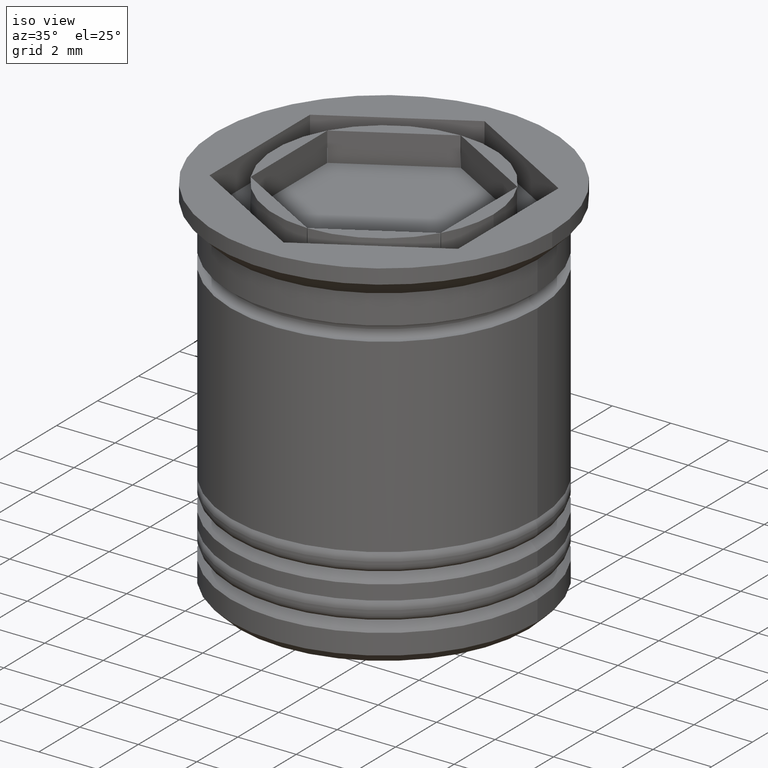
[diagram: clean part render]
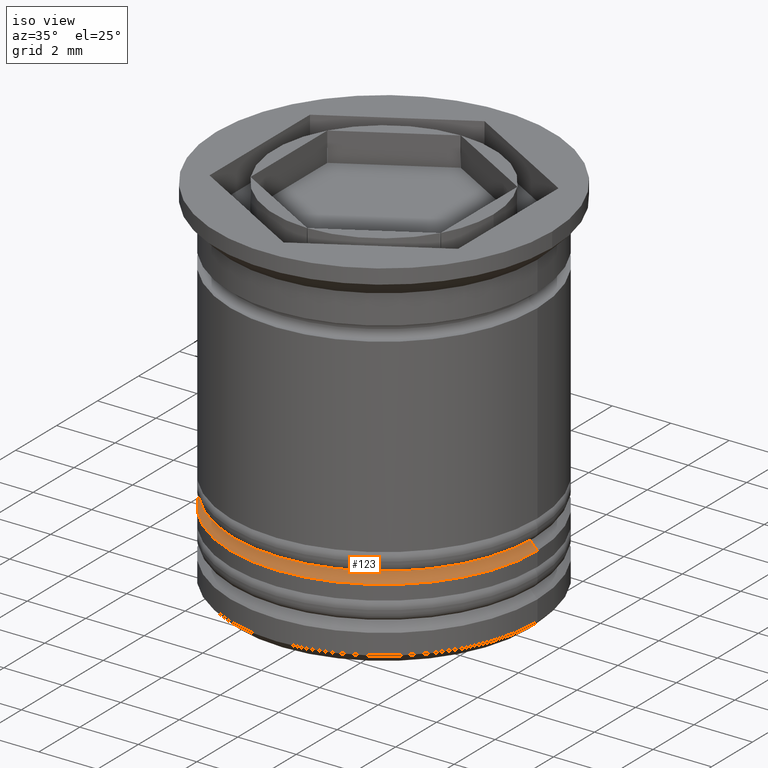
[diagram: same view with one face highlighted and labeled with its STEP entity id]
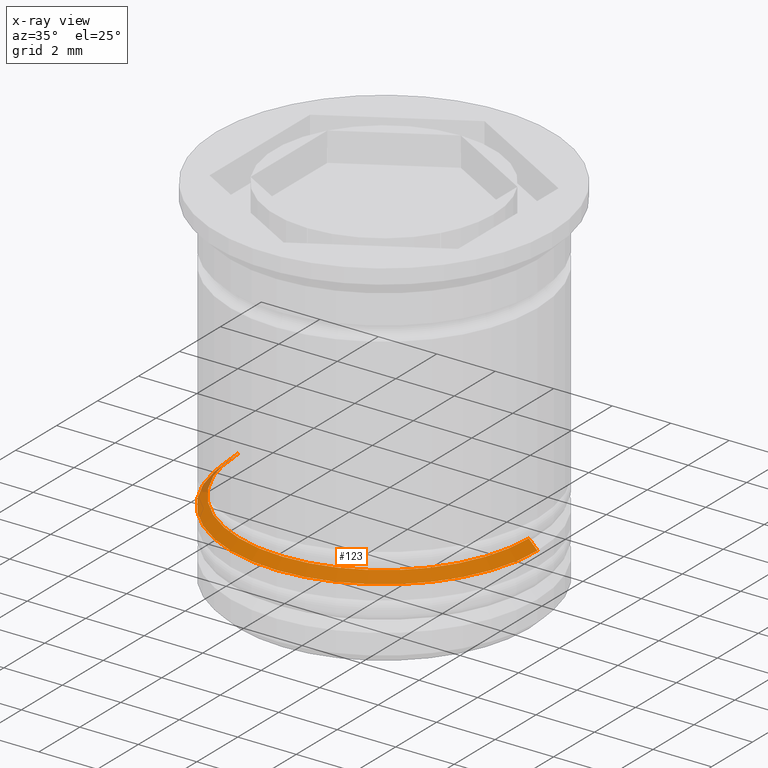
[diagram: x-ray of the same camera — body ghosted, the highlighted face saturated]
A machine part, iso view. The second image highlights one B-rep face of the part: STEP entity #123.
The next image is the same camera in x-ray: the body ghosted, the highlighted face saturated — about 2% of this face is hidden behind the body in this view.
In plain terms, the highlighted conical surface has half-angle 45 deg.
Its self-contained STEP definition (entity closure, byte-faithful):
#89 = CARTESIAN_POINT ( 'NONE',  ( 5.250000000000000888, 0.000000000000000000, -10.00000000000000355 ) ) ;
#123 = ADVANCED_FACE ( 'NONE', ( #373 ), #1415, .T. ) ;
#128 = DIRECTION ( 'NONE',  ( -0.7071067811865512365, 0.000000000000000000, -0.7071067811865439090 ) ) ;
#174 = LINE ( 'NONE', #1424, #429 ) ;
#225 = DIRECTION ( 'NONE',  ( -1.000000000000000000, 0.000000000000000000, 0.000000000000000000 ) ) ;
#373 = FACE_OUTER_BOUND ( 'NONE', #945, .T. ) ;
#429 = VECTOR ( 'NONE', #1710, 1000.000000000000000 ) ;
#455 = VERTEX_POINT ( 'NONE', #1505 ) ;
#465 = ORIENTED_EDGE ( 'NONE', *, *, #904, .F. ) ;
#492 = CARTESIAN_POINT ( 'NONE',  ( 0.000000000000000000, 0.000000000000000000, -10.00000000000000355 ) ) ;
#510 = ORIENTED_EDGE ( 'NONE', *, *, #1806, .T. ) ;
#535 = CARTESIAN_POINT ( 'NONE',  ( 0.000000000000000000, 0.000000000000000000, -9.500000000000000000 ) ) ;
#548 = AXIS2_PLACEMENT_3D ( 'NONE', #535, #999, #225 ) ;
#628 = VERTEX_POINT ( 'NONE', #89 ) ;
#652 = ORIENTED_EDGE ( 'NONE', *, *, #1888, .F. ) ;
#668 = AXIS2_PLACEMENT_3D ( 'NONE', #1835, #1259, #1112 ) ;
#813 = ORIENTED_EDGE ( 'NONE', *, *, #1340, .F. ) ;
#826 = VERTEX_POINT ( 'NONE', #920 ) ;
#860 = CIRCLE ( 'NONE', #1667, 5.250000000000000888 ) ;
#904 = EDGE_CURVE ( 'NONE', #628, #1292, #860, .T. ) ;
#920 = CARTESIAN_POINT ( 'NONE',  ( 4.950000000000001066, 0.000000000000000000, -9.700000000000006395 ) ) ;
#931 = DIRECTION ( 'NONE',  ( 1.000000000000000000, 0.000000000000000000, 0.000000000000000000 ) ) ;
#945 = EDGE_LOOP ( 'NONE', ( #652, #813, #510, #465 ) ) ;
#999 = DIRECTION ( 'NONE',  ( 0.000000000000000000, 0.000000000000000000, -1.000000000000000000 ) ) ;
#1112 = DIRECTION ( 'NONE',  ( -1.000000000000000000, 0.000000000000000000, 0.000000000000000000 ) ) ;
#1119 = DIRECTION ( 'NONE',  ( 0.000000000000000000, 0.000000000000000000, -1.000000000000000000 ) ) ;
#1185 = CARTESIAN_POINT ( 'NONE',  ( -4.749999999999992006, 0.000000000000000000, -9.500000000000000000 ) ) ;
#1188 = CIRCLE ( 'NONE', #668, 4.950000000000001066 ) ;
#1259 = DIRECTION ( 'NONE',  ( -0.000000000000000000, -0.000000000000000000, 1.000000000000000000 ) ) ;
#1292 = VERTEX_POINT ( 'NONE', #1524 ) ;
#1340 = EDGE_CURVE ( 'NONE', #455, #826, #1188, .T. ) ;
#1415 = CONICAL_SURFACE ( 'NONE', #548, 4.749999999999992006, 0.7853981633974533860 ) ;
#1424 = CARTESIAN_POINT ( 'NONE',  ( 4.749999999999992006, 5.817072295949917565E-16, -9.500000000000000000 ) ) ;
#1505 = CARTESIAN_POINT ( 'NONE',  ( -4.950000000000001066, 6.062001655779399497E-16, -9.700000000000006395 ) ) ;
#1518 = LINE ( 'NONE', #1185, #1624 ) ;
#1524 = CARTESIAN_POINT ( 'NONE',  ( -5.250000000000000888, 6.429395695523605139E-16, -10.00000000000000355 ) ) ;
#1624 = VECTOR ( 'NONE', #128, 1000.000000000000000 ) ;
#1667 = AXIS2_PLACEMENT_3D ( 'NONE', #492, #1119, #931 ) ;
#1710 = DIRECTION ( 'NONE',  ( 0.7071067811865512365, 8.659560562354978464E-17, -0.7071067811865439090 ) ) ;
#1806 = EDGE_CURVE ( 'NONE', #455, #1292, #1518, .T. ) ;
#1835 = CARTESIAN_POINT ( 'NONE',  ( 0.000000000000000000, 0.000000000000000000, -9.700000000000006395 ) ) ;
#1888 = EDGE_CURVE ( 'NONE', #826, #628, #174, .T. ) ;